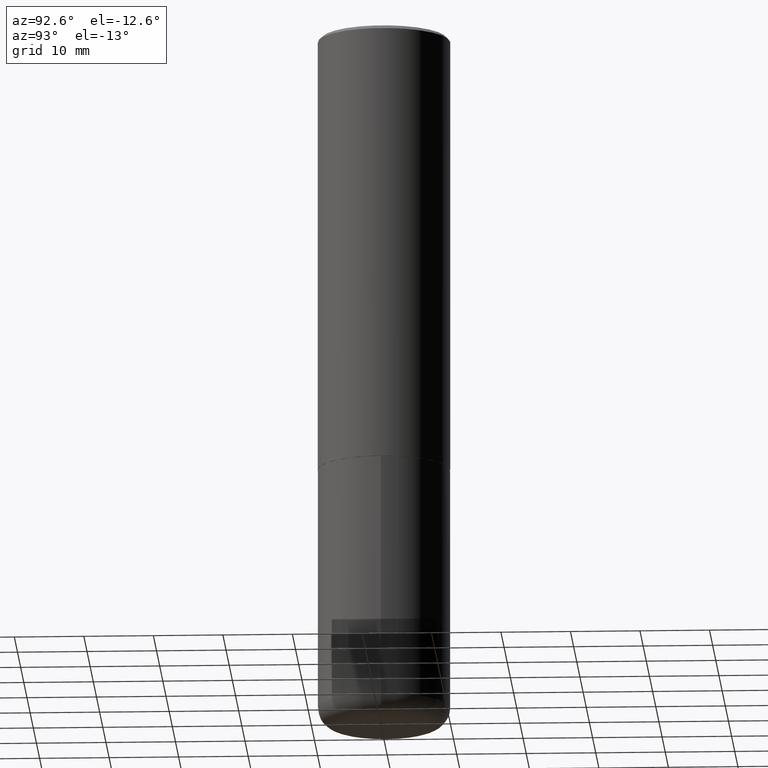
[diagram: clean part render]
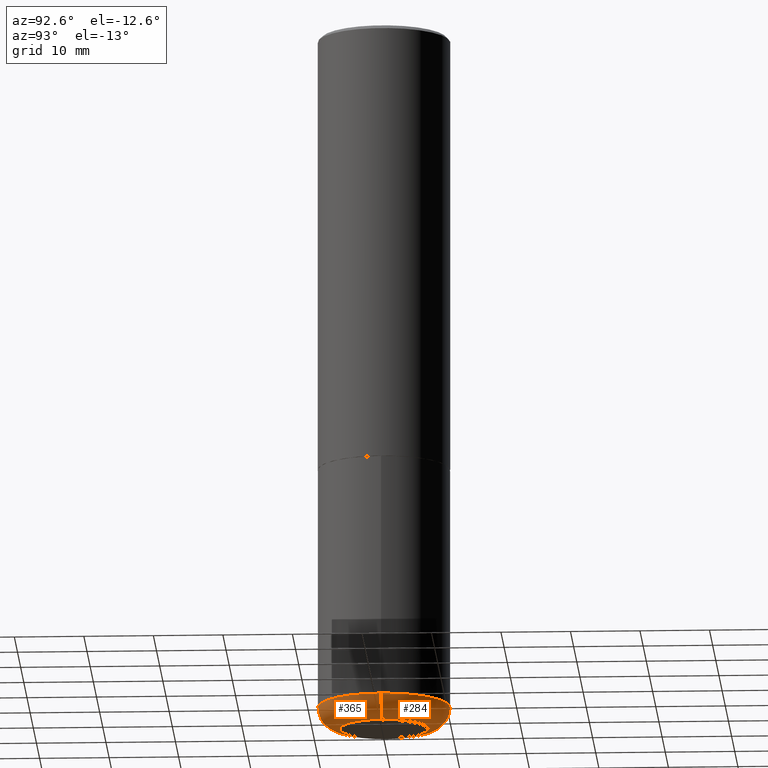
[diagram: same view with one multi-face feature highlighted, each face labeled with its STEP entity id]
A machine part, auxiliary view. The highlighted faces form ONE feature: a constant-radius fillet chain: 2 tangent blend faces with common blend radius 3.175 mm. The faces share edges in the B-rep.
Their STEP definitions:
[1] entity #284 (Torus):
#1 = AXIS2_PLACEMENT_3D ( 'NONE', #44, #309, #139 ) ;
#21 = DIRECTION ( 'NONE',  ( 1.000000000000000000, -6.982962677686269077E-15, 0.000000000000000000 ) ) ;
#35 = ORIENTED_EDGE ( 'NONE', *, *, #245, .T. ) ;
#42 = VERTEX_POINT ( 'NONE', #366 ) ;
#44 = CARTESIAN_POINT ( 'NONE',  ( 0.2500000000000000555, -1.527523085743875734E-14, -3.875000000000000000 ) ) ;
#46 = AXIS2_PLACEMENT_3D ( 'NONE', #307, #270, #84 ) ;
#48 = DIRECTION ( 'NONE',  ( 7.105427357601001859E-15, 1.000000000000000000, -3.491481338843145583E-15 ) ) ;
#66 = VERTEX_POINT ( 'NONE', #113 ) ;
#73 = AXIS2_PLACEMENT_3D ( 'NONE', #184, #48, #176 ) ;
#82 = CARTESIAN_POINT ( 'NONE',  ( 9.781875224740546387E-29, -1.396592535537258233E-14, -4.000000000000000000 ) ) ;
#84 = DIRECTION ( 'NONE',  ( 1.000000000000000000, -6.982962677686265922E-15, 0.000000000000000000 ) ) ;
#89 = CIRCLE ( 'NONE', #46, 0.3750000000000001110 ) ;
#106 = CARTESIAN_POINT ( 'NONE',  ( 9.476191623967404313E-29, -1.352949018801718908E-14, -3.875000000000000000 ) ) ;
#107 = CIRCLE ( 'NONE', #1, 0.1250000000000000000 ) ;
#108 = ORIENTED_EDGE ( 'NONE', *, *, #227, .T. ) ;
#113 = CARTESIAN_POINT ( 'NONE',  ( 0.2500000000000000555, -1.571166602479415059E-14, -4.000000000000000000 ) ) ;
#129 = EDGE_CURVE ( 'NONE', #66, #285, #107, .T. ) ;
#134 = CIRCLE ( 'NONE', #295, 0.2500000000000000555 ) ;
#139 = DIRECTION ( 'NONE',  ( 1.000000000000000000, -6.982962677686262766E-15, 0.000000000000000000 ) ) ;
#149 = AXIS2_PLACEMENT_3D ( 'NONE', #106, #236, #205 ) ;
#176 = DIRECTION ( 'NONE',  ( -1.000000000000000000, 7.105427357600996337E-15, 0.000000000000000000 ) ) ;
#184 = CARTESIAN_POINT ( 'NONE',  ( -0.2500000000000000555, -1.175313334861693862E-14, -3.875000000000000000 ) ) ;
#188 = ORIENTED_EDGE ( 'NONE', *, *, #381, .F. ) ;
#193 = CARTESIAN_POINT ( 'NONE',  ( -0.2500000000000000555, -1.152726172244457105E-14, -4.000000000000000000 ) ) ;
#195 = CIRCLE ( 'NONE', #73, 0.1250000000000000000 ) ;
#197 = FACE_OUTER_BOUND ( 'NONE', #318, .T. ) ;
#205 = DIRECTION ( 'NONE',  ( 1.000000000000000000, -6.982962677686267499E-15, 4.883557194083113462E-29 ) ) ;
#227 = EDGE_CURVE ( 'NONE', #66, #264, #134, .T. ) ;
#233 = ORIENTED_EDGE ( 'NONE', *, *, #129, .F. ) ;
#236 = DIRECTION ( 'NONE',  ( -2.445468806185136597E-29, 3.491481338843145583E-15, 1.000000000000000000 ) ) ;
#243 = TOROIDAL_SURFACE ( 'NONE', #149, 0.2500000000000000555, 0.1249999999999999861 ) ;
#245 = EDGE_CURVE ( 'NONE', #264, #42, #195, .T. ) ;
#264 = VERTEX_POINT ( 'NONE', #193 ) ;
#270 = DIRECTION ( 'NONE',  ( -2.445468806185136597E-29, 3.491481338843145583E-15, 1.000000000000000000 ) ) ;
#271 = DIRECTION ( 'NONE',  ( -2.445468806185136597E-29, 3.491481338843145583E-15, 1.000000000000000000 ) ) ;
#284 = ADVANCED_FACE ( 'NONE', ( #197 ), #243, .T. ) ;
#285 = VERTEX_POINT ( 'NONE', #333 ) ;
#295 = AXIS2_PLACEMENT_3D ( 'NONE', #82, #271, #21 ) ;
#307 = CARTESIAN_POINT ( 'NONE',  ( 9.476191623967404313E-29, -1.352949018801718908E-14, -3.875000000000000000 ) ) ;
#309 = DIRECTION ( 'NONE',  ( -6.982962677686266711E-15, -1.000000000000000000, 3.491481338843145583E-15 ) ) ;
#318 = EDGE_LOOP ( 'NONE', ( #108, #35, #188, #233 ) ) ;
#333 = CARTESIAN_POINT ( 'NONE',  ( 0.3750000000000001110, -1.614810119214954068E-14, -3.875000000000000000 ) ) ;
#366 = CARTESIAN_POINT ( 'NONE',  ( -0.3750000000000001110, -1.086495492891681181E-14, -3.875000000000000000 ) ) ;
#381 = EDGE_CURVE ( 'NONE', #285, #42, #89, .T. ) ;
[2] entity #365 (Torus):
#1 = AXIS2_PLACEMENT_3D ( 'NONE', #44, #309, #139 ) ;
#2 = AXIS2_PLACEMENT_3D ( 'NONE', #43, #207, #336 ) ;
#10 = CIRCLE ( 'NONE', #314, 0.2500000000000000555 ) ;
#32 = DIRECTION ( 'NONE',  ( 1.000000000000000000, -6.982962677686265922E-15, 0.000000000000000000 ) ) ;
#33 = EDGE_LOOP ( 'NONE', ( #131, #293, #194, #222 ) ) ;
#42 = VERTEX_POINT ( 'NONE', #366 ) ;
#43 = CARTESIAN_POINT ( 'NONE',  ( 9.476191623967404313E-29, -1.352949018801718908E-14, -3.875000000000000000 ) ) ;
#44 = CARTESIAN_POINT ( 'NONE',  ( 0.2500000000000000555, -1.527523085743875734E-14, -3.875000000000000000 ) ) ;
#48 = DIRECTION ( 'NONE',  ( 7.105427357601001859E-15, 1.000000000000000000, -3.491481338843145583E-15 ) ) ;
#65 = CARTESIAN_POINT ( 'NONE',  ( 9.476191623967404313E-29, -1.352949018801718908E-14, -3.875000000000000000 ) ) ;
#66 = VERTEX_POINT ( 'NONE', #113 ) ;
#73 = AXIS2_PLACEMENT_3D ( 'NONE', #184, #48, #176 ) ;
#107 = CIRCLE ( 'NONE', #1, 0.1250000000000000000 ) ;
#113 = CARTESIAN_POINT ( 'NONE',  ( 0.2500000000000000555, -1.571166602479415059E-14, -4.000000000000000000 ) ) ;
#117 = CIRCLE ( 'NONE', #348, 0.3750000000000001110 ) ;
#119 = FACE_OUTER_BOUND ( 'NONE', #33, .T. ) ;
#129 = EDGE_CURVE ( 'NONE', #66, #285, #107, .T. ) ;
#131 = ORIENTED_EDGE ( 'NONE', *, *, #245, .F. ) ;
#139 = DIRECTION ( 'NONE',  ( 1.000000000000000000, -6.982962677686262766E-15, 0.000000000000000000 ) ) ;
#176 = DIRECTION ( 'NONE',  ( -1.000000000000000000, 7.105427357600996337E-15, 0.000000000000000000 ) ) ;
#184 = CARTESIAN_POINT ( 'NONE',  ( -0.2500000000000000555, -1.175313334861693862E-14, -3.875000000000000000 ) ) ;
#193 = CARTESIAN_POINT ( 'NONE',  ( -0.2500000000000000555, -1.152726172244457105E-14, -4.000000000000000000 ) ) ;
#194 = ORIENTED_EDGE ( 'NONE', *, *, #129, .T. ) ;
#195 = CIRCLE ( 'NONE', #73, 0.1250000000000000000 ) ;
#207 = DIRECTION ( 'NONE',  ( -2.445468806185136597E-29, 3.491481338843145583E-15, 1.000000000000000000 ) ) ;
#222 = ORIENTED_EDGE ( 'NONE', *, *, #325, .F. ) ;
#245 = EDGE_CURVE ( 'NONE', #264, #42, #195, .T. ) ;
#247 = EDGE_CURVE ( 'NONE', #264, #66, #10, .T. ) ;
#264 = VERTEX_POINT ( 'NONE', #193 ) ;
#285 = VERTEX_POINT ( 'NONE', #333 ) ;
#293 = ORIENTED_EDGE ( 'NONE', *, *, #247, .T. ) ;
#304 = CARTESIAN_POINT ( 'NONE',  ( 9.781875224740546387E-29, -1.396592535537258233E-14, -4.000000000000000000 ) ) ;
#306 = DIRECTION ( 'NONE',  ( 1.000000000000000000, -6.982962677686269077E-15, 0.000000000000000000 ) ) ;
#309 = DIRECTION ( 'NONE',  ( -6.982962677686266711E-15, -1.000000000000000000, 3.491481338843145583E-15 ) ) ;
#314 = AXIS2_PLACEMENT_3D ( 'NONE', #304, #342, #306 ) ;
#323 = DIRECTION ( 'NONE',  ( -2.445468806185136597E-29, 3.491481338843145583E-15, 1.000000000000000000 ) ) ;
#325 = EDGE_CURVE ( 'NONE', #42, #285, #117, .T. ) ;
#333 = CARTESIAN_POINT ( 'NONE',  ( 0.3750000000000001110, -1.614810119214954068E-14, -3.875000000000000000 ) ) ;
#336 = DIRECTION ( 'NONE',  ( 1.000000000000000000, -6.982962677686267499E-15, 4.883557194083113462E-29 ) ) ;
#342 = DIRECTION ( 'NONE',  ( -2.445468806185136597E-29, 3.491481338843145583E-15, 1.000000000000000000 ) ) ;
#348 = AXIS2_PLACEMENT_3D ( 'NONE', #65, #323, #32 ) ;
#365 = ADVANCED_FACE ( 'NONE', ( #119 ), #411, .T. ) ;
#366 = CARTESIAN_POINT ( 'NONE',  ( -0.3750000000000001110, -1.086495492891681181E-14, -3.875000000000000000 ) ) ;
#411 = TOROIDAL_SURFACE ( 'NONE', #2, 0.2500000000000000555, 0.1249999999999999861 ) ;